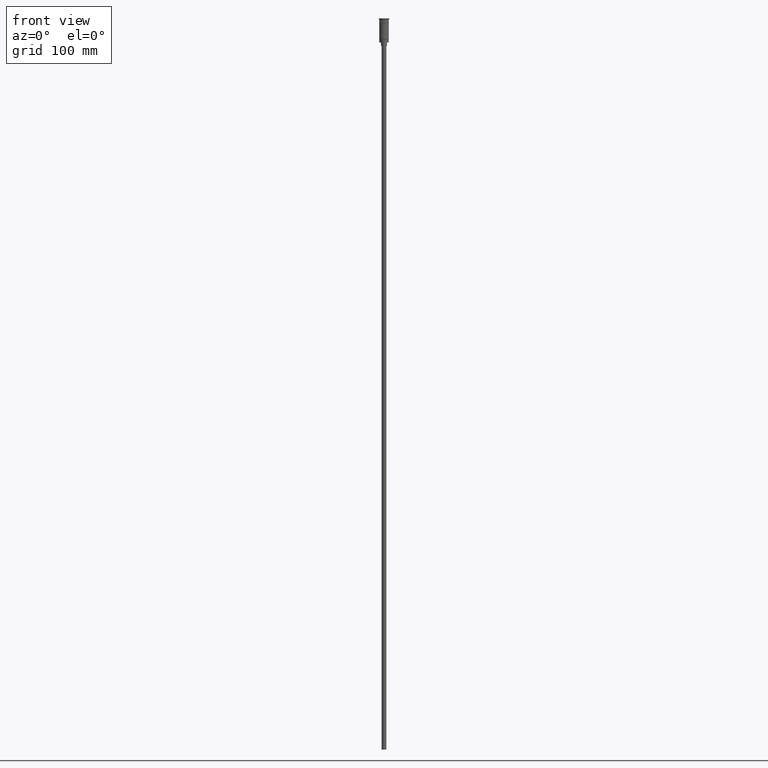
[diagram: clean part render]
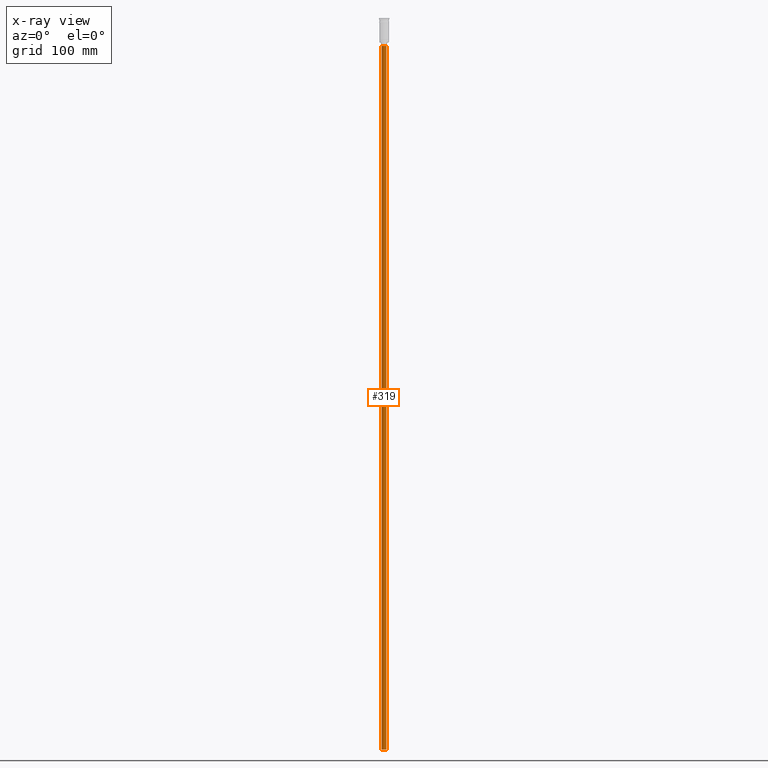
[diagram: x-ray — body ghosted, one internal face saturated and labeled with its STEP entity id]
A machine part, front view, then the same camera in x-ray: the body is ghosted and one INTERNAL B-rep face — a face not visible from any outside direction — is saturated and labeled: STEP entity #319.
In plain terms, the highlighted cylindrical surface (edge-blend (fillet) strip) has radius 2 mm, axis along (-0, -0, 1).
Its self-contained STEP definition (entity closure, byte-faithful):
#8 = CARTESIAN_POINT ( 'NONE',  ( 0.000000000000000000, 0.000000000000000000, -23.49999999999999645 ) ) ;
#73 = VERTEX_POINT ( 'NONE', #961 ) ;
#226 = EDGE_CURVE ( 'NONE', #1363, #1504, #1538, .T. ) ;
#287 = DIRECTION ( 'NONE',  ( -0.000000000000000000, -0.000000000000000000, 1.000000000000000000 ) ) ;
#319 = ADVANCED_FACE ( 'NONE', ( #899 ), #1264, .T. ) ;
#371 = VECTOR ( 'NONE', #596, 1000.000000000000000 ) ;
#396 = CARTESIAN_POINT ( 'NONE',  ( 2.000000000000000000, 0.000000000000000000, -23.49999999999999645 ) ) ;
#397 = AXIS2_PLACEMENT_3D ( 'NONE', #647, #885, #1477 ) ;
#494 = ORIENTED_EDGE ( 'NONE', *, *, #1506, .T. ) ;
#532 = CARTESIAN_POINT ( 'NONE',  ( 0.000000000000000000, 0.000000000000000000, -620.4999999999998863 ) ) ;
#546 = ORIENTED_EDGE ( 'NONE', *, *, #226, .T. ) ;
#548 = DIRECTION ( 'NONE',  ( 1.000000000000000000, 0.000000000000000000, 0.000000000000000000 ) ) ;
#596 = DIRECTION ( 'NONE',  ( -0.000000000000000000, -0.000000000000000000, 1.000000000000000000 ) ) ;
#647 = CARTESIAN_POINT ( 'NONE',  ( 0.000000000000000000, 0.000000000000000000, -620.4999999999998863 ) ) ;
#687 = VECTOR ( 'NONE', #1405, 1000.000000000000000 ) ;
#692 = CARTESIAN_POINT ( 'NONE',  ( -2.000000000000000000, 2.449293598294706414E-16, -23.49999999999999645 ) ) ;
#733 = AXIS2_PLACEMENT_3D ( 'NONE', #532, #287, #548 ) ;
#816 = EDGE_LOOP ( 'NONE', ( #900, #1019, #494, #546 ) ) ;
#885 = DIRECTION ( 'NONE',  ( 0.000000000000000000, 0.000000000000000000, -1.000000000000000000 ) ) ;
#899 = FACE_OUTER_BOUND ( 'NONE', #816, .T. ) ;
#900 = ORIENTED_EDGE ( 'NONE', *, *, #1574, .F. ) ;
#909 = LINE ( 'NONE', #1041, #687 ) ;
#946 = AXIS2_PLACEMENT_3D ( 'NONE', #8, #1002, #1492 ) ;
#961 = CARTESIAN_POINT ( 'NONE',  ( 2.000000000000000000, 0.000000000000000000, -620.4999999999998863 ) ) ;
#1002 = DIRECTION ( 'NONE',  ( 0.000000000000000000, 0.000000000000000000, -1.000000000000000000 ) ) ;
#1019 = ORIENTED_EDGE ( 'NONE', *, *, #1376, .F. ) ;
#1041 = CARTESIAN_POINT ( 'NONE',  ( 2.000000000000000000, 0.000000000000000000, -620.4999999999998863 ) ) ;
#1061 = CARTESIAN_POINT ( 'NONE',  ( -2.000000000000000000, 2.449293598294706414E-16, -620.4999999999998863 ) ) ;
#1085 = LINE ( 'NONE', #1197, #371 ) ;
#1103 = CIRCLE ( 'NONE', #397, 2.000000000000000000 ) ;
#1197 = CARTESIAN_POINT ( 'NONE',  ( -2.000000000000000000, 2.449293598294706414E-16, -620.4999999999998863 ) ) ;
#1264 = CYLINDRICAL_SURFACE ( 'NONE', #733, 2.000000000000000000 ) ;
#1363 = VERTEX_POINT ( 'NONE', #396 ) ;
#1376 = EDGE_CURVE ( 'NONE', #73, #1513, #1103, .T. ) ;
#1405 = DIRECTION ( 'NONE',  ( -0.000000000000000000, -0.000000000000000000, 1.000000000000000000 ) ) ;
#1477 = DIRECTION ( 'NONE',  ( -1.000000000000000000, 0.000000000000000000, 0.000000000000000000 ) ) ;
#1492 = DIRECTION ( 'NONE',  ( -1.000000000000000000, 0.000000000000000000, 0.000000000000000000 ) ) ;
#1504 = VERTEX_POINT ( 'NONE', #692 ) ;
#1506 = EDGE_CURVE ( 'NONE', #73, #1363, #909, .T. ) ;
#1513 = VERTEX_POINT ( 'NONE', #1061 ) ;
#1538 = CIRCLE ( 'NONE', #946, 2.000000000000000000 ) ;
#1574 = EDGE_CURVE ( 'NONE', #1513, #1504, #1085, .T. ) ;